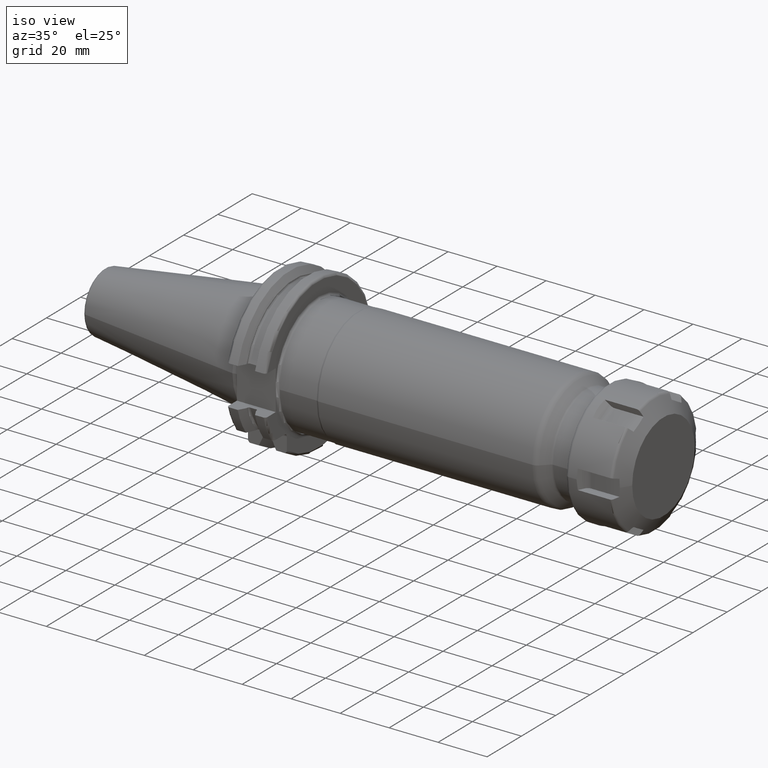
[diagram: clean part render]
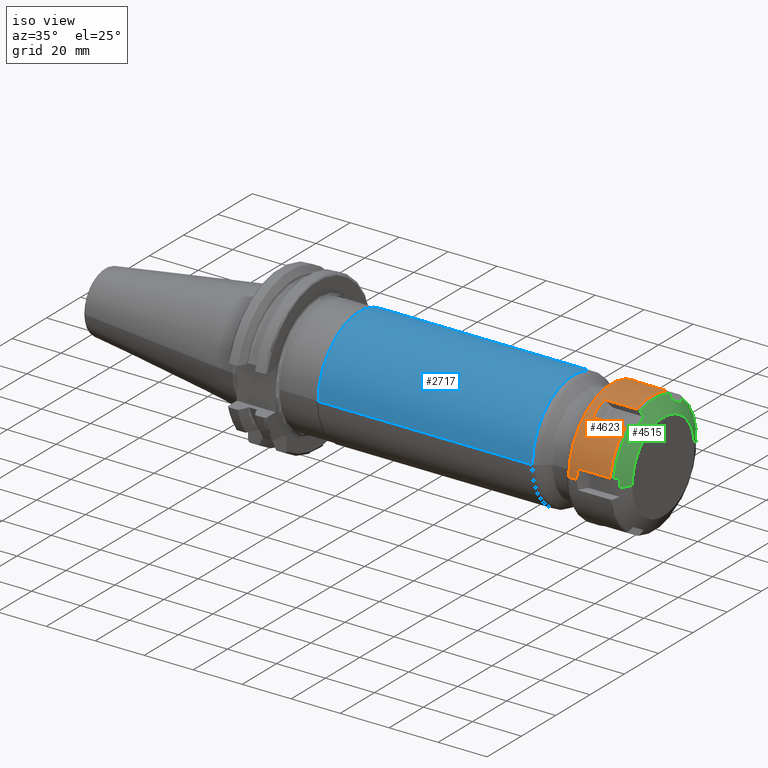
[diagram: same view with three faces highlighted in distinct colors, each labeled with its STEP entity id]
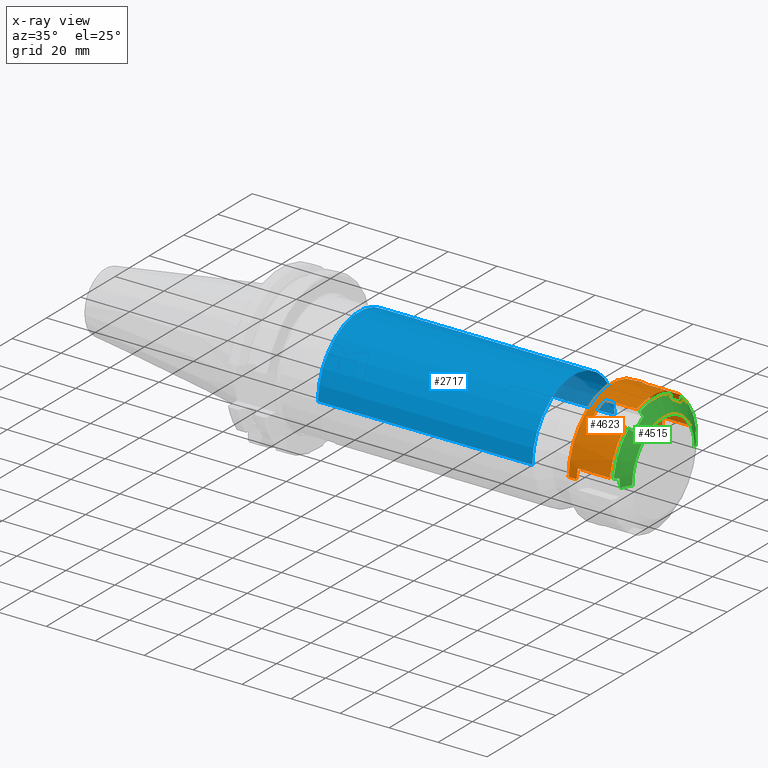
[diagram: x-ray of the same camera — body ghosted, the three highlighted faces saturated]
A machine part, iso view with three faces highlighted in distinct colors.
The next image is the same camera in x-ray (body ghosted, the three faces saturated) — at least one of them is partly hidden behind the body in this view.
Their STEP definitions:

[orange] entity #4623 — the highlighted cylindrical surface (partial cylindrical patch) has radius 25 mm, axis along (1, 0, 0).
#3536=DIRECTION('',(-9.999994740307E-1,1.025640486187E-3,1.577133168835E-12));
#3537=VECTOR('',#3536,3.250001709401E0);
#3538=CARTESIAN_POINT('',(4.5E0,2.499666666667E1,1.417951640115E-14));
#3539=LINE('',#3538,#3537);
#3545=DIRECTION('',(-9.999994740307E-1,-1.025640486184E-3,-1.578379367537E-12));
#3546=VECTOR('',#3545,3.250001709401E0);
#3547=CARTESIAN_POINT('',(4.5E0,-2.499666666667E1,-1.240051271650E-14));
#3548=LINE('',#3547,#3546);
#3591=CARTESIAN_POINT('',(1.788119784648E1,1.577876823125E1,1.939150517893E1));
#3611=CARTESIAN_POINT('',(1.788119784648E1,2.468292021820E1,3.969061539222E0));
#3613=CARTESIAN_POINT('',(1.788119784648E1,-8.904151986948E0,2.336056671815E1));
#3633=CARTESIAN_POINT('',(1.788119784648E1,8.904151986948E0,2.336056671815E1));
#3635=CARTESIAN_POINT('',(1.788119784648E1,-2.468292021820E1,3.969061539222E0));
#3655=CARTESIAN_POINT('',(1.788119784648E1,-1.577876823125E1,1.939150517893E1));
#3865=DIRECTION('',(1.E0,0.E0,0.E0));
#3866=VECTOR('',#3865,1.307411806468E1);
#3867=CARTESIAN_POINT('',(4.807079781803E0,-2.468292021820E1,3.969061539222E0));
#3868=LINE('',#3867,#3866);
#3869=CARTESIAN_POINT('',(4.807079781803E0,-2.468292021820E1,3.969061539222E0));
#3870=CARTESIAN_POINT('',(4.729701493378E0,-2.476029850662E1,3.487859093522E0));
#3871=CARTESIAN_POINT('',(4.609219197891E0,-2.488166969100E1,2.550817383639E0));
#3872=CARTESIAN_POINT('',(4.504536623461E0,-2.498235226543E1,1.228026509027E0));
#3873=CARTESIAN_POINT('',(4.5E0,-2.499666666667E1,4.003888699202E-1));
#3874=CARTESIAN_POINT('',(4.5E0,-2.499666666667E1,-1.240051271650E-14));
#3876=CARTESIAN_POINT('',(1.25E0,0.E0,0.E0));
#3877=DIRECTION('',(-1.E0,0.E0,0.E0));
#3878=DIRECTION('',(0.E0,-1.E0,0.E0));
#3879=AXIS2_PLACEMENT_3D('',#3876,#3877,#3878);
#3881=CARTESIAN_POINT('',(4.5E0,2.499666666667E1,1.417951640115E-14));
#3882=CARTESIAN_POINT('',(4.5E0,2.499666666667E1,1.451714455632E-1));
#3883=CARTESIAN_POINT('',(4.487872521708E0,2.499903346707E1,4.463428212677E-1));
#3884=CARTESIAN_POINT('',(4.506996588005E0,2.498383245127E1,9.338081408940E-1));
#3885=CARTESIAN_POINT('',(4.530046438305E0,2.495973141581E1,1.454059244478E0));
#3886=CARTESIAN_POINT('',(4.569007848129E0,2.492105169613E1,2.013026454191E0));
#3887=CARTESIAN_POINT('',(4.624405857984E0,2.486557811087E1,2.614252934544E0));
#3888=CARTESIAN_POINT('',(4.700654693787E0,2.478934988654E1,3.262138709532E0));
#3889=CARTESIAN_POINT('',(4.768334245703E0,2.472166575430E1,3.728109624791E0));
#3890=CARTESIAN_POINT('',(4.807079781803E0,2.468292021820E1,3.969061539222E0));
#3892=DIRECTION('',(1.E0,0.E0,0.E0));
#3893=VECTOR('',#3892,1.307411806468E1);
#3894=CARTESIAN_POINT('',(4.807079781803E0,2.468292021820E1,3.969061539222E0));
#3895=LINE('',#3894,#3893);
#3896=CARTESIAN_POINT('',(1.788119784648E1,0.E0,0.E0));
#3897=DIRECTION('',(-1.E0,0.E0,0.E0));
#3898=DIRECTION('',(0.E0,6.311507292499E-1,7.756602071573E-1));
#3899=AXIS2_PLACEMENT_3D('',#3896,#3897,#3898);
#3901=DIRECTION('',(1.E0,0.E0,0.E0));
#3902=VECTOR('',#3901,1.307411806468E1);
#3903=CARTESIAN_POINT('',(4.807079781803E0,1.577876823125E1,1.939150517893E1));
#3904=LINE('',#3903,#3902);
#3905=CARTESIAN_POINT('',(4.807079781803E0,1.577876823125E1,1.939150517893E1));
#3906=CARTESIAN_POINT('',(4.381591242552E0,1.369997375277E1,2.108300957602E1));
#3907=CARTESIAN_POINT('',(4.381591242552E0,1.140843500467E1,2.240603008909E1));
#3908=CARTESIAN_POINT('',(4.807079781803E0,8.904151986948E0,2.336056671815E1));
#3910=DIRECTION('',(1.E0,0.E0,0.E0));
#3911=VECTOR('',#3910,1.307411806468E1);
#3912=CARTESIAN_POINT('',(4.807079781803E0,8.904151986948E0,2.336056671815E1));
#3913=LINE('',#3912,#3911);
#3914=CARTESIAN_POINT('',(1.788119784648E1,0.E0,0.E0));
#3915=DIRECTION('',(-1.E0,0.E0,0.E0));
#3916=DIRECTION('',(0.E0,-3.561660794779E-1,9.344226687262E-1));
#3917=AXIS2_PLACEMENT_3D('',#3914,#3915,#3916);
#3919=DIRECTION('',(1.E0,0.E0,0.E0));
#3920=VECTOR('',#3919,1.307411806468E1);
#3921=CARTESIAN_POINT('',(4.807079781803E0,-8.904151986948E0,2.336056671815E1));
#3922=LINE('',#3921,#3920);
#3923=CARTESIAN_POINT('',(4.807079781803E0,-8.904151986948E0,2.336056671815E1));
#3924=CARTESIAN_POINT('',(4.381591242552E0,-1.140843500467E1,2.240603008909E1));
#3925=CARTESIAN_POINT('',(4.381591242552E0,-1.369997375277E1,2.108300957602E1));
#3926=CARTESIAN_POINT('',(4.807079781803E0,-1.577876823125E1,1.939150517893E1));
#3928=DIRECTION('',(1.E0,0.E0,0.E0));
#3929=VECTOR('',#3928,1.307411806468E1);
#3930=CARTESIAN_POINT('',(4.807079781803E0,-1.577876823125E1,1.939150517893E1));
#3931=LINE('',#3930,#3929);
#3932=CARTESIAN_POINT('',(1.788119784648E1,0.E0,0.E0));
#3933=DIRECTION('',(-1.E0,0.E0,0.E0));
#3934=DIRECTION('',(0.E0,-9.873168087279E-1,1.587624615689E-1));
#3935=AXIS2_PLACEMENT_3D('',#3932,#3933,#3934);
#4095=CARTESIAN_POINT('',(1.25E0,2.5E1,0.E0));
#4096=CARTESIAN_POINT('',(1.25E0,-2.5E1,0.E0));
#4097=VERTEX_POINT('',#4095);
#4098=VERTEX_POINT('',#4096);
#4104=VERTEX_POINT('',#3611);
#4106=CARTESIAN_POINT('',(4.807079781803E0,2.468292021820E1,3.969061539222E0));
#4107=VERTEX_POINT('',#4106);
#4119=VERTEX_POINT('',#3633);
#4120=VERTEX_POINT('',#3591);
#4121=CARTESIAN_POINT('',(4.807079781803E0,8.904151986948E0,2.336056671815E1));
#4122=VERTEX_POINT('',#4121);
#4123=CARTESIAN_POINT('',(4.807079781803E0,1.577876823125E1,1.939150517893E1));
#4124=VERTEX_POINT('',#4123);
#4134=VERTEX_POINT('',#3655);
#4135=VERTEX_POINT('',#3613);
#4136=CARTESIAN_POINT('',(4.807079781803E0,-1.577876823125E1,1.939150517893E1));
#4137=VERTEX_POINT('',#4136);
#4138=CARTESIAN_POINT('',(4.807079781803E0,-8.904151986948E0,2.336056671815E1));
#4139=VERTEX_POINT('',#4138);
#4151=VERTEX_POINT('',#3635);
#4152=CARTESIAN_POINT('',(4.807079781803E0,-2.468292021820E1,3.969061539222E0));
#4153=VERTEX_POINT('',#4152);
#4191=CARTESIAN_POINT('',(4.5E0,-2.499666666667E1,-1.240051271650E-14));
#4192=VERTEX_POINT('',#4191);
#4193=CARTESIAN_POINT('',(4.5E0,2.499666666667E1,1.417951640115E-14));
#4194=VERTEX_POINT('',#4193);
#4592=CARTESIAN_POINT('',(-1.125E0,0.E0,0.E0));
#4593=DIRECTION('',(1.E0,0.E0,0.E0));
#4594=DIRECTION('',(0.E0,-1.E0,0.E0));
#4595=AXIS2_PLACEMENT_3D('',#4592,#4593,#4594);
#4596=CYLINDRICAL_SURFACE('',#4595,2.5E1);
#4597=ORIENTED_EDGE('',*,*,#4555,.F.);
#4598=ORIENTED_EDGE('',*,*,#4572,.T.);
#4599=ORIENTED_EDGE('',*,*,#4328,.T.);
#4601=ORIENTED_EDGE('',*,*,#4600,.T.);
#4602=ORIENTED_EDGE('',*,*,#4324,.F.);
#4604=ORIENTED_EDGE('',*,*,#4603,.T.);
#4606=ORIENTED_EDGE('',*,*,#4605,.T.);
#4607=ORIENTED_EDGE('',*,*,#4355,.F.);
#4608=ORIENTED_EDGE('',*,*,#4445,.F.);
#4610=ORIENTED_EDGE('',*,*,#4609,.T.);
#4612=ORIENTED_EDGE('',*,*,#4611,.T.);
#4613=ORIENTED_EDGE('',*,*,#4371,.F.);
#4615=ORIENTED_EDGE('',*,*,#4614,.F.);
#4617=ORIENTED_EDGE('',*,*,#4616,.T.);
#4619=ORIENTED_EDGE('',*,*,#4618,.T.);
#4620=ORIENTED_EDGE('',*,*,#4387,.F.);
#4621=EDGE_LOOP('',(#4597,#4598,#4599,#4601,#4602,#4604,#4606,#4607,#4608,#4610,
#4612,#4613,#4615,#4617,#4619,#4620));
#4622=FACE_OUTER_BOUND('',#4621,.F.);
#4623=ADVANCED_FACE('',(#4622),#4596,.T.);
#3875=B_SPLINE_CURVE_WITH_KNOTS('',3,(#3869,#3870,#3871,#3872,#3873,#3874),
.UNSPECIFIED.,.F.,.F.,(4,1,1,4),(0.E0,3.333333333333E-1,6.666666666667E-1,1.E0),
.UNSPECIFIED.);
#3880=CIRCLE('',#3879,2.5E1);
#3891=B_SPLINE_CURVE_WITH_KNOTS('',3,(#3881,#3882,#3883,#3884,#3885,#3886,#3887,
#3888,#3889,#3890),.UNSPECIFIED.,.F.,.F.,(4,1,1,1,1,1,1,4),(0.E0,
1.428571428571E-1,2.857142857143E-1,4.285714285714E-1,5.714285714286E-1,
7.142857142857E-1,8.571428571429E-1,1.E0),.UNSPECIFIED.);
#3900=CIRCLE('',#3899,2.5E1);
#3909=B_SPLINE_CURVE_WITH_KNOTS('',3,(#3905,#3906,#3907,#3908),.UNSPECIFIED.,
.F.,.F.,(4,4),(0.E0,1.E0),.UNSPECIFIED.);
#3918=CIRCLE('',#3917,2.5E1);
#3927=B_SPLINE_CURVE_WITH_KNOTS('',3,(#3923,#3924,#3925,#3926),.UNSPECIFIED.,
.F.,.F.,(4,4),(0.E0,1.E0),.UNSPECIFIED.);
#3936=CIRCLE('',#3935,2.5E1);
#4324=EDGE_CURVE('',#4194,#4097,#3539,.T.);
#4328=EDGE_CURVE('',#4192,#4098,#3548,.T.);
#4355=EDGE_CURVE('',#4120,#4104,#3900,.T.);
#4371=EDGE_CURVE('',#4135,#4119,#3918,.T.);
#4387=EDGE_CURVE('',#4151,#4134,#3936,.T.);
#4445=EDGE_CURVE('',#4124,#4120,#3904,.T.);
#4555=EDGE_CURVE('',#4153,#4151,#3868,.T.);
#4572=EDGE_CURVE('',#4153,#4192,#3875,.T.);
#4600=EDGE_CURVE('',#4098,#4097,#3880,.T.);
#4603=EDGE_CURVE('',#4194,#4107,#3891,.T.);
#4605=EDGE_CURVE('',#4107,#4104,#3895,.T.);
#4609=EDGE_CURVE('',#4124,#4122,#3909,.T.);
#4611=EDGE_CURVE('',#4122,#4119,#3913,.T.);
#4614=EDGE_CURVE('',#4139,#4135,#3922,.T.);
#4616=EDGE_CURVE('',#4139,#4137,#3927,.T.);
#4618=EDGE_CURVE('',#4137,#4134,#3931,.T.);

[blue] entity #2717 — the highlighted cylindrical surface (partial cylindrical patch) has radius 24 mm, axis along (1, 0, 0).
#1009=DIRECTION('',(-1.E0,0.E0,-2.553056736432E-14));
#1010=VECTOR('',#1009,8.752048995802E1);
#1011=CARTESIAN_POINT('',(1.232573593129E2,-2.4E1,2.229275122142E-12));
#1012=LINE('',#1011,#1010);
#1018=DIRECTION('',(-1.E0,0.E0,2.551367439178E-14));
#1019=VECTOR('',#1018,8.752048995802E1);
#1020=CARTESIAN_POINT('',(1.232573593129E2,2.4E1,-2.230030131080E-12));
#1021=LINE('',#1020,#1019);
#1022=CARTESIAN_POINT('',(3.573686935486E1,0.E0,0.E0));
#1023=DIRECTION('',(1.E0,0.E0,0.E0));
#1024=DIRECTION('',(0.E0,1.E0,0.E0));
#1025=AXIS2_PLACEMENT_3D('',#1022,#1023,#1024);
#1027=CARTESIAN_POINT('',(1.232573593129E2,0.E0,0.E0));
#1028=DIRECTION('',(-1.E0,0.E0,0.E0));
#1029=DIRECTION('',(0.E0,-1.E0,0.E0));
#1030=AXIS2_PLACEMENT_3D('',#1027,#1028,#1029);
#1586=CARTESIAN_POINT('',(1.232573593129E2,2.4E1,0.E0));
#1587=CARTESIAN_POINT('',(1.232573593129E2,-2.4E1,0.E0));
#1588=VERTEX_POINT('',#1586);
#1589=VERTEX_POINT('',#1587);
#1651=CARTESIAN_POINT('',(3.573686935486E1,2.4E1,0.E0));
#1652=CARTESIAN_POINT('',(3.573686935486E1,-2.4E1,0.E0));
#1653=VERTEX_POINT('',#1651);
#1654=VERTEX_POINT('',#1652);
#2704=CARTESIAN_POINT('',(1.26525E1,0.E0,0.E0));
#2705=DIRECTION('',(1.E0,0.E0,0.E0));
#2706=DIRECTION('',(0.E0,-1.E0,0.E0));
#2707=AXIS2_PLACEMENT_3D('',#2704,#2705,#2706);
#2708=CYLINDRICAL_SURFACE('',#2707,2.4E1);
#2710=ORIENTED_EDGE('',*,*,#2709,.F.);
#2711=ORIENTED_EDGE('',*,*,#2699,.F.);
#2713=ORIENTED_EDGE('',*,*,#2712,.F.);
#2714=ORIENTED_EDGE('',*,*,#2695,.T.);
#2715=EDGE_LOOP('',(#2710,#2711,#2713,#2714));
#2716=FACE_OUTER_BOUND('',#2715,.F.);
#2717=ADVANCED_FACE('',(#2716),#2708,.T.);
#1026=CIRCLE('',#1025,2.4E1);
#1031=CIRCLE('',#1030,2.4E1);
#2695=EDGE_CURVE('',#1589,#1654,#1012,.T.);
#2699=EDGE_CURVE('',#1588,#1653,#1021,.T.);
#2709=EDGE_CURVE('',#1653,#1654,#1026,.T.);
#2712=EDGE_CURVE('',#1589,#1588,#1031,.T.);

[green] entity #4515 — the highlighted conical surface has half-angle 60 deg.
#3452=DIRECTION('',(-5.E-1,-8.660254037844E-1,0.E0));
#3453=VECTOR('',#3452,4.561067126598E0);
#3454=CARTESIAN_POINT('',(2.25E1,-1.825E1,0.E0));
#3455=LINE('',#3454,#3453);
#3461=DIRECTION('',(-5.E-1,8.660254037844E-1,0.E0));
#3462=VECTOR('',#3461,4.561067126598E0);
#3463=CARTESIAN_POINT('',(2.25E1,1.825E1,0.E0));
#3464=LINE('',#3463,#3462);
#3745=CARTESIAN_POINT('',(2.007435737753E1,-2.22E1,3.35E0));
#3746=CARTESIAN_POINT('',(2.010642291935E1,-2.22E1,2.977782663007E0));
#3747=CARTESIAN_POINT('',(2.016009585532E1,-2.22E1,2.233360618265E0));
#3748=CARTESIAN_POINT('',(2.020864465134E1,-2.22E1,1.116836975823E0));
#3749=CARTESIAN_POINT('',(2.021946643670E1,-2.22E1,3.722962341463E-1));
#3750=CARTESIAN_POINT('',(2.021946643670E1,-2.22E1,-4.505137681520E-14));
#3752=CARTESIAN_POINT('',(1.896372960121E1,-2.407423620780E1,3.817299570546E0));
#3753=CARTESIAN_POINT('',(1.915154885340E1,-2.375738600462E1,3.738299942188E0));
#3754=CARTESIAN_POINT('',(1.952447514954E1,-2.312816444792E1,3.581417388109E0));
#3755=CARTESIAN_POINT('',(1.989196990744E1,-2.250789661449E1,3.426767247974E0));
#3756=CARTESIAN_POINT('',(2.007435737753E1,-2.22E1,3.35E0));
#3758=CARTESIAN_POINT('',(1.896372960121E1,0.E0,0.E0));
#3759=DIRECTION('',(-1.E0,0.E0,0.E0));
#3760=DIRECTION('',(0.E0,-9.876609726275E-1,1.566071618686E-1));
#3761=AXIS2_PLACEMENT_3D('',#3758,#3759,#3760);
#3763=CARTESIAN_POINT('',(2.007435737753E1,-1.400118510268E1,1.755076396401E1));
#3764=CARTESIAN_POINT('',(1.989202963548E1,-1.422154361045E1,1.777895187872E1));
#3765=CARTESIAN_POINT('',(1.952459463873E1,-1.466553630405E1,1.823871977204E1));
#3766=CARTESIAN_POINT('',(1.915160861205E1,-1.511608354504E1,1.870527509788E1));
#3767=CARTESIAN_POINT('',(1.896372960121E1,-1.534299650585E1,1.894025034738E1));
#3769=CARTESIAN_POINT('',(2.007435737753E1,-8.198814897322E0,2.090076396401E1));
#3770=CARTESIAN_POINT('',(2.013850261850E1,-8.843656557694E0,2.052846445781E1));
#3771=CARTESIAN_POINT('',(2.022485531472E1,-1.013317723897E1,1.978395934535E1));
#3772=CARTESIAN_POINT('',(2.022485360844E1,-1.206686210227E1,1.866754586900E1));
#3773=CARTESIAN_POINT('',(2.013850094754E1,-1.335636024026E1,1.792305377191E1));
#3774=CARTESIAN_POINT('',(2.007435737753E1,-1.400118510268E1,1.755076396401E1));
#3776=CARTESIAN_POINT('',(1.896372960121E1,-8.731239701949E0,2.275754991793E1));
#3777=CARTESIAN_POINT('',(1.915154885340E1,-8.641230285410E0,2.244364977861E1));
#3778=CARTESIAN_POINT('',(1.952447514954E1,-8.462483784300E0,2.182028664885E1));
#3779=CARTESIAN_POINT('',(1.989196990744E1,-8.286280817645E0,2.120579387789E1));
#3780=CARTESIAN_POINT('',(2.007435737753E1,-8.198814897322E0,2.090076396401E1));
#3782=CARTESIAN_POINT('',(1.896372960121E1,0.E0,0.E0));
#3783=DIRECTION('',(-1.E0,0.E0,0.E0));
#3784=DIRECTION('',(0.E0,-3.582047057210E-1,9.336430735561E-1));
#3785=AXIS2_PLACEMENT_3D('',#3782,#3783,#3784);
#3787=CARTESIAN_POINT('',(2.007435737753E1,8.198814897322E0,2.090076396401E1));
#3788=CARTESIAN_POINT('',(1.989202963548E1,8.286252174404E0,2.120569398704E1));
#3789=CARTESIAN_POINT('',(1.952459463873E1,8.462426503065E0,2.182008688545E1));
#3790=CARTESIAN_POINT('',(1.915160861205E1,8.641201647020E0,2.244354990467E1));
#3791=CARTESIAN_POINT('',(1.896372960121E1,8.731239701949E0,2.275754991793E1));
#3793=CARTESIAN_POINT('',(2.007435737753E1,1.400118510268E1,1.755076396401E1));
#3794=CARTESIAN_POINT('',(2.013850261850E1,1.335634344231E1,1.792306347021E1));
#3795=CARTESIAN_POINT('',(2.022485531472E1,1.206682276103E1,1.866756858268E1));
#3796=CARTESIAN_POINT('',(2.022485360844E1,1.013313789773E1,1.978398205903E1));
#3797=CARTESIAN_POINT('',(2.013850094754E1,8.843639759743E0,2.052847415612E1));
#3798=CARTESIAN_POINT('',(2.007435737753E1,8.198814897322E0,2.090076396401E1));
#3800=CARTESIAN_POINT('',(1.896372960121E1,1.534299650585E1,1.894025034738E1));
#3801=CARTESIAN_POINT('',(1.915154885340E1,1.511615571921E1,1.870534983642E1));
#3802=CARTESIAN_POINT('',(1.952447514954E1,1.466568066362E1,1.823886926074E1));
#3803=CARTESIAN_POINT('',(1.989196990744E1,1.422161579685E1,1.777902662992E1));
#3804=CARTESIAN_POINT('',(2.007435737753E1,1.400118510268E1,1.755076396401E1));
#3806=CARTESIAN_POINT('',(1.896372960121E1,0.E0,0.E0));
#3807=DIRECTION('',(-1.E0,0.E0,0.E0));
#3808=DIRECTION('',(0.E0,6.294562669065E-1,7.770359116876E-1));
#3809=AXIS2_PLACEMENT_3D('',#3806,#3807,#3808);
#3811=CARTESIAN_POINT('',(2.007435737753E1,2.22E1,3.35E0));
#3812=CARTESIAN_POINT('',(1.989202963548E1,2.250779578486E1,3.426742108322E0));
#3813=CARTESIAN_POINT('',(1.952459463873E1,2.312796280711E1,3.581367113410E0));
#3814=CARTESIAN_POINT('',(1.915160861205E1,2.375728519206E1,3.738274806794E0));
#3815=CARTESIAN_POINT('',(1.896372960121E1,2.407423620780E1,3.817299570546E0));
#3817=CARTESIAN_POINT('',(2.021946643670E1,2.22E1,0.E0));
#3818=CARTESIAN_POINT('',(2.021946643670E1,2.22E1,3.723412104007E-1));
#3819=CARTESIAN_POINT('',(2.020864224929E1,2.22E1,1.116942255784E0));
#3820=CARTESIAN_POINT('',(2.016008769471E1,2.22E1,2.233495806650E0));
#3821=CARTESIAN_POINT('',(2.010641792581E1,2.22E1,2.977840628173E0));
#3822=CARTESIAN_POINT('',(2.007435737753E1,2.22E1,3.35E0));
#3824=CARTESIAN_POINT('',(2.25E1,0.E0,0.E0));
#3825=DIRECTION('',(1.E0,0.E0,0.E0));
#3826=DIRECTION('',(0.E0,1.E0,0.E0));
#3827=AXIS2_PLACEMENT_3D('',#3824,#3825,#3826);
#4087=CARTESIAN_POINT('',(2.25E1,1.825E1,0.E0));
#4088=CARTESIAN_POINT('',(2.25E1,-1.825E1,0.E0));
#4089=VERTEX_POINT('',#4087);
#4090=VERTEX_POINT('',#4088);
#4099=VERTEX_POINT('',#3811);
#4100=VERTEX_POINT('',#3815);
#4101=VERTEX_POINT('',#3817);
#4115=VERTEX_POINT('',#3787);
#4116=VERTEX_POINT('',#3791);
#4117=VERTEX_POINT('',#3793);
#4118=VERTEX_POINT('',#3800);
#4130=VERTEX_POINT('',#3763);
#4131=VERTEX_POINT('',#3767);
#4132=VERTEX_POINT('',#3769);
#4133=VERTEX_POINT('',#3776);
#4145=VERTEX_POINT('',#3745);
#4146=VERTEX_POINT('',#3750);
#4147=VERTEX_POINT('',#3752);
#4484=CARTESIAN_POINT('',(2.073186480061E1,0.E0,0.E0));
#4485=DIRECTION('',(-1.E0,0.E0,0.E0));
#4486=DIRECTION('',(0.E0,1.E0,0.E0));
#4487=AXIS2_PLACEMENT_3D('',#4484,#4485,#4486);
#4488=CONICAL_SURFACE('',#4487,2.13125E1,6.E1);
#4490=ORIENTED_EDGE('',*,*,#4489,.F.);
#4492=ORIENTED_EDGE('',*,*,#4491,.F.);
#4493=ORIENTED_EDGE('',*,*,#4391,.T.);
#4495=ORIENTED_EDGE('',*,*,#4494,.F.);
#4497=ORIENTED_EDGE('',*,*,#4496,.F.);
#4499=ORIENTED_EDGE('',*,*,#4498,.F.);
#4500=ORIENTED_EDGE('',*,*,#4375,.T.);
#4502=ORIENTED_EDGE('',*,*,#4501,.F.);
#4503=ORIENTED_EDGE('',*,*,#4477,.F.);
#4504=ORIENTED_EDGE('',*,*,#4448,.F.);
#4505=ORIENTED_EDGE('',*,*,#4359,.T.);
#4507=ORIENTED_EDGE('',*,*,#4506,.F.);
#4509=ORIENTED_EDGE('',*,*,#4508,.F.);
#4510=ORIENTED_EDGE('',*,*,#4235,.F.);
#4511=ORIENTED_EDGE('',*,*,#4202,.T.);
#4512=ORIENTED_EDGE('',*,*,#4232,.T.);
#4513=EDGE_LOOP('',(#4490,#4492,#4493,#4495,#4497,#4499,#4500,#4502,#4503,#4504,
#4505,#4507,#4509,#4510,#4511,#4512));
#4514=FACE_OUTER_BOUND('',#4513,.F.);
#4515=ADVANCED_FACE('',(#4514),#4488,.T.);
#3751=B_SPLINE_CURVE_WITH_KNOTS('',3,(#3745,#3746,#3747,#3748,#3749,#3750),
.UNSPECIFIED.,.F.,.F.,(4,1,1,4),(0.E0,3.333333333333E-1,6.666666666667E-1,1.E0),
.UNSPECIFIED.);
#3757=B_SPLINE_CURVE_WITH_KNOTS('',3,(#3752,#3753,#3754,#3755,#3756),
.UNSPECIFIED.,.F.,.F.,(4,1,4),(0.E0,5.E-1,1.E0),.UNSPECIFIED.);
#3762=CIRCLE('',#3761,2.4375E1);
#3768=B_SPLINE_CURVE_WITH_KNOTS('',3,(#3763,#3764,#3765,#3766,#3767),
.UNSPECIFIED.,.F.,.F.,(4,1,4),(0.E0,5.E-1,1.E0),.UNSPECIFIED.);
#3775=B_SPLINE_CURVE_WITH_KNOTS('',3,(#3769,#3770,#3771,#3772,#3773,#3774),
.UNSPECIFIED.,.F.,.F.,(4,1,1,4),(0.E0,3.333333333333E-1,6.666666666667E-1,1.E0),
.UNSPECIFIED.);
#3781=B_SPLINE_CURVE_WITH_KNOTS('',3,(#3776,#3777,#3778,#3779,#3780),
.UNSPECIFIED.,.F.,.F.,(4,1,4),(0.E0,5.E-1,1.E0),.UNSPECIFIED.);
#3786=CIRCLE('',#3785,2.4375E1);
#3792=B_SPLINE_CURVE_WITH_KNOTS('',3,(#3787,#3788,#3789,#3790,#3791),
.UNSPECIFIED.,.F.,.F.,(4,1,4),(0.E0,5.E-1,1.E0),.UNSPECIFIED.);
#3799=B_SPLINE_CURVE_WITH_KNOTS('',3,(#3793,#3794,#3795,#3796,#3797,#3798),
.UNSPECIFIED.,.F.,.F.,(4,1,1,4),(0.E0,3.333333333333E-1,6.666666666667E-1,1.E0),
.UNSPECIFIED.);
#3805=B_SPLINE_CURVE_WITH_KNOTS('',3,(#3800,#3801,#3802,#3803,#3804),
.UNSPECIFIED.,.F.,.F.,(4,1,4),(0.E0,5.E-1,1.E0),.UNSPECIFIED.);
#3810=CIRCLE('',#3809,2.4375E1);
#3816=B_SPLINE_CURVE_WITH_KNOTS('',3,(#3811,#3812,#3813,#3814,#3815),
.UNSPECIFIED.,.F.,.F.,(4,1,4),(0.E0,5.E-1,1.E0),.UNSPECIFIED.);
#3823=B_SPLINE_CURVE_WITH_KNOTS('',3,(#3817,#3818,#3819,#3820,#3821,#3822),
.UNSPECIFIED.,.F.,.F.,(4,1,1,4),(0.E0,3.333333333333E-1,6.666666666667E-1,1.E0),
.UNSPECIFIED.);
#3828=CIRCLE('',#3827,1.825E1);
#4202=EDGE_CURVE('',#4089,#4090,#3828,.T.);
#4232=EDGE_CURVE('',#4090,#4146,#3455,.T.);
#4235=EDGE_CURVE('',#4089,#4101,#3464,.T.);
#4359=EDGE_CURVE('',#4118,#4100,#3810,.T.);
#4375=EDGE_CURVE('',#4133,#4116,#3786,.T.);
#4391=EDGE_CURVE('',#4147,#4131,#3762,.T.);
#4448=EDGE_CURVE('',#4118,#4117,#3805,.T.);
#4477=EDGE_CURVE('',#4117,#4115,#3799,.T.);
#4489=EDGE_CURVE('',#4145,#4146,#3751,.T.);
#4491=EDGE_CURVE('',#4147,#4145,#3757,.T.);
#4494=EDGE_CURVE('',#4130,#4131,#3768,.T.);
#4496=EDGE_CURVE('',#4132,#4130,#3775,.T.);
#4498=EDGE_CURVE('',#4133,#4132,#3781,.T.);
#4501=EDGE_CURVE('',#4115,#4116,#3792,.T.);
#4506=EDGE_CURVE('',#4099,#4100,#3816,.T.);
#4508=EDGE_CURVE('',#4101,#4099,#3823,.T.);